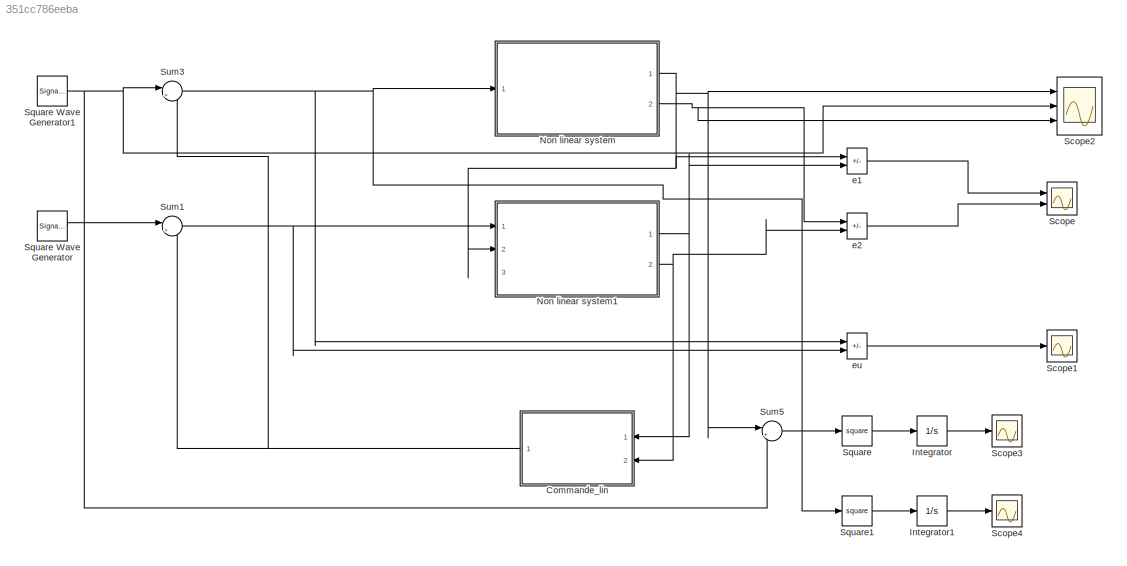
MODEL slx_351cc786eeba
KIND model
CONFIG AbsTol = auto
CONFIG EnableMultiTasking = off
CONFIG FixedStep = auto
CONFIG MaxStep = auto
CONFIG MinStep = auto
CONFIG RelTol = 1e-3
CONFIG SampleTimeConstraint = Unconstrained
CONFIG Solver = VariableStepAuto
CONFIG SolverName = VariableStepAuto
CONFIG StartTime = 0.0
CONFIG StopTime = 100
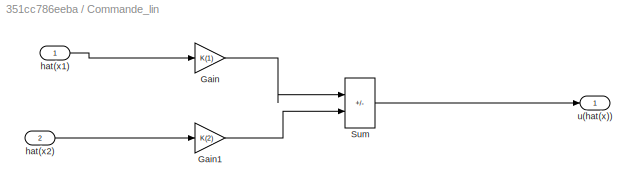
BLOCK [SubSystem] Commande_lin
  NameLocation = top
  Ports = [2, 1]
  RequestExecContextInheritance = off
BLOCK [Gain] Commande_lin/Gain
  Gain = K(1)
BLOCK [Gain] Commande_lin/Gain1
  Gain = K(2)
BLOCK [Sum] Commande_lin/Sum
  IconShape = rectangular
  Inputs = |--
  Ports = [2, 1]
BLOCK [Inport] Commande_lin/hat(x1)
BLOCK [Inport] Commande_lin/hat(x2)
  Port = 2
BLOCK [Outport] Commande_lin/u(hat(x))
BLOCK [Integrator] Integrator
  Ports = [1, 1]
BLOCK [Integrator] Integrator1
  Ports = [1, 1]
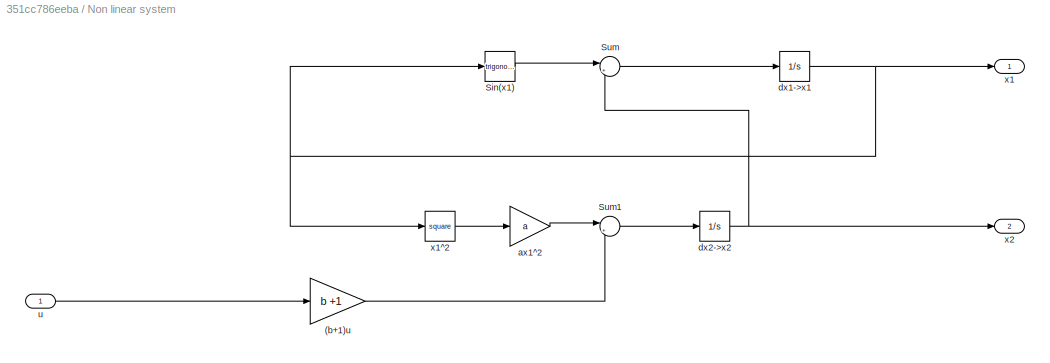
BLOCK [SubSystem] Non linear system
  Ports = [1, 2]
  RequestExecContextInheritance = off
BLOCK [Gain] Non linear system/(b+1)u
  Gain = b +1
BLOCK [Trigonometry] Non linear system/Sin(x1)
  Ports = [1, 1]
BLOCK [Sum] Non linear system/Sum
  Inputs = |++
  Ports = [2, 1]
BLOCK [Sum] Non linear system/Sum1
  Inputs = |++
  Ports = [2, 1]
BLOCK [Gain] Non linear system/ax1^2
  Gain = a
BLOCK [Integrator] Non linear system/dx1->x1
  Ports = [1, 1]
BLOCK [Integrator] Non linear system/dx2->x2
  Ports = [1, 1]
BLOCK [Inport] Non linear system/u
BLOCK [Outport] Non linear system/x1
BLOCK [Math] Non linear system/x1^2
  Operator = square
  Ports = [1, 1]
BLOCK [Outport] Non linear system/x2
  Port = 2
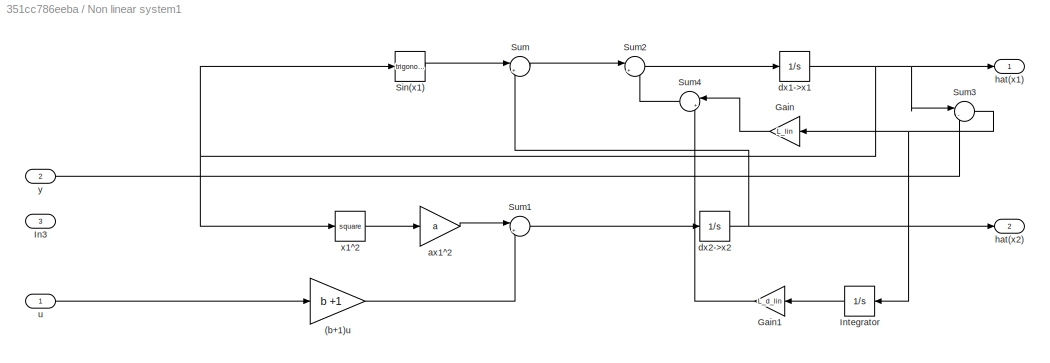
BLOCK [SubSystem] Non linear system1
  PortSchema = {"entries":[{"content":{"sides":[{"content":{"connectorIds":["In1","In2"]},"type":"ConnectorPlacement.EquallySpacedRectSide","uuid":"618d0c69-a2b8-4648-b070-1c0623f9788f"},{"content":{"connectorIds":["In3","Out1","Out2"],"side":"RIGHT"},"type":"ConnectorPlacement.EquallySpacedRectSide","uuid":"79cec027-d132-4f78-855a-d4abd2a9ad58"},{"content":{"connectorIds":[],"side":"TOP"},"type":"ConnectorPlace...<+261ch>
  Ports = [3, 2]
  RequestExecContextInheritance = off
BLOCK [Gain] Non linear system1/(b+1)u
  Gain = b +1
BLOCK [Gain] Non linear system1/Gain
  Gain = L_lin
  NameLocation = top
BLOCK [Gain] Non linear system1/Gain1
  Gain = L_d_lin
  NameLocation = top
BLOCK [Inport] Non linear system1/In3
  Port = 3
BLOCK [Integrator] Non linear system1/Integrator
  NameLocation = top
  Ports = [1, 1]
BLOCK [Trigonometry] Non linear system1/Sin(x1)
  Ports = [1, 1]
BLOCK [Sum] Non linear system1/Sum
  Inputs = |++
  Ports = [2, 1]
BLOCK [Sum] Non linear system1/Sum1
  Inputs = |++
  Ports = [2, 1]
BLOCK [Sum] Non linear system1/Sum2
  Inputs = |++
  Ports = [2, 1]
BLOCK [Sum] Non linear system1/Sum3
  Inputs = |-+
  Ports = [2, 1]
BLOCK [Sum] Non linear system1/Sum4
  Inputs = |++
  NameLocation = top
  Ports = [2, 1]
BLOCK [Gain] Non linear system1/ax1^2
  Gain = a
BLOCK [Integrator] Non linear system1/dx1->x1
  Ports = [1, 1]
BLOCK [Integrator] Non linear system1/dx2->x2
  InitialCondition = 1
  Ports = [1, 1]
BLOCK [Outport] Non linear system1/hat(x1)
BLOCK [Outport] Non linear system1/hat(x2)
  Port = 2
BLOCK [Inport] Non linear system1/u
BLOCK [Math] Non linear system1/x1^2
  Operator = square
  Ports = [1, 1]
BLOCK [Inport] Non linear system1/y
  Port = 2
BLOCK [Scope] Scope
  Floating = off
  NumInputPorts = 2
  Ports = [2]
  ScopeSpecificationString = Simulink.scopes.TimeScopeBlockCfg('CurrentConfiguration', extmgr.ConfigurationSet(extmgr.Configuration('Core','General UI',true),extmgr.Configuration('Core','Source UI',true),extmgr.Configuration('Sources','WiredSimulink',true,'DataLoggingVariableName','ScopeData1'),extmgr.Configuration('Visuals','Time Domain',true,'SerializedDisplays',{struct('MinYLimReal','-3.03671','MaxYLimReal','1.2993','YLabe...<+1461ch>
BLOCK [Scope] Scope1
  Floating = off
  NumInputPorts = 1
  Ports = [1]
  ScopeSpecificationString = Simulink.scopes.TimeScopeBlockCfg('CurrentConfiguration', extmgr.ConfigurationSet(extmgr.Configuration('Core','General UI',true),extmgr.Configuration('Core','Source UI',true),extmgr.Configuration('Sources','WiredSimulink',true,'DataLoggingVariableName','ScopeData1'),extmgr.Configuration('Visuals','Time Domain',true,'SerializedDisplays',{struct('MinYLimReal','-0.0001','MaxYLimReal','0.00003','YLabe...<+1401ch>
BLOCK [Scope] Scope2
  Floating = off
  NumInputPorts = 3
  Ports = [3]
  ScopeSpecificationString = Simulink.scopes.TimeScopeBlockCfg('CurrentConfiguration', extmgr.ConfigurationSet(extmgr.Configuration('Core','General UI',true),extmgr.Configuration('Core','Source UI',true),extmgr.Configuration('Sources','WiredSimulink',true,'DataLoggingVariableName','ScopeData1'),extmgr.Configuration('Visuals','Time Domain',true,'SerializedDisplays',{struct('MinYLimReal','-1.802','MaxYLimReal','1.88745','YLabel...<+1421ch>
BLOCK [Scope] Scope3
  Floating = off
  NumInputPorts = 1
  Ports = [1]
  ScopeSpecificationString = Simulink.scopes.TimeScopeBlockCfg('CurrentConfiguration', extmgr.ConfigurationSet(extmgr.Configuration('Core','General UI',true),extmgr.Configuration('Core','Source UI',true),extmgr.Configuration('Sources','WiredSimulink',true,'DataLoggingVariableName','ScopeData2'),extmgr.Configuration('Visuals','Time Domain',true,'SerializedDisplays',{struct('MinYLimReal','-37.55743','MaxYLimReal','338.01687','Y...<+1379ch>
BLOCK [Scope] Scope4
  Floating = off
  NumInputPorts = 1
  Ports = [1]
  ScopeSpecificationString = Simulink.scopes.TimeScopeBlockCfg('CurrentConfiguration', extmgr.ConfigurationSet(extmgr.Configuration('Core','General UI',true),extmgr.Configuration('Core','Source UI',true),extmgr.Configuration('Sources','WiredSimulink',true,'DataLoggingVariableName','ScopeData3'),extmgr.Configuration('Visuals','Time Domain',true,'SerializedDisplays',{struct('MinYLimReal','-3.06858','MaxYLimReal','27.61722','YLa...<+1374ch>
BLOCK [Math] Square
  Operator = square
  Ports = [1, 1]
BLOCK [SignalGenerator] Square Wave Generator
  Frequency = 0.1
  Ports = [0, 1]
  Units = rad/sec
  WaveForm = square
BLOCK [SignalGenerator] Square Wave Generator1
  Frequency = 0.1
  Ports = [0, 1]
  Units = rad/sec
  WaveForm = square
BLOCK [Math] Square1
  Operator = square
  Ports = [1, 1]
BLOCK [Sum] Sum1
  Inputs = |++
  Ports = [2, 1]
BLOCK [Sum] Sum3
  Inputs = |++
  Ports = [2, 1]
BLOCK [Sum] Sum5
  Inputs = |++
  Ports = [2, 1]
BLOCK [Sum] e1
  IconShape = rectangular
  Inputs = |+-
  Ports = [2, 1]
BLOCK [Sum] e2
  IconShape = rectangular
  Inputs = |+-
  Ports = [2, 1]
BLOCK [Sum] eu
  IconShape = rectangular
  Inputs = |+-
  Ports = [2, 1]
LINE Commande_lin/Gain1:1 -> Commande_lin/Sum:2
LINE Commande_lin/Gain:1 -> Commande_lin/Sum:1
LINE Commande_lin/Sum:1 -> Commande_lin/u(hat(x)):1
LINE Commande_lin/hat(x1):1 -> Commande_lin/Gain:1
LINE Commande_lin/hat(x2):1 -> Commande_lin/Gain1:1
NET Commande_lin:1 -> Sum1:2, Sum3:2
LINE Integrator1:1 -> Scope4:1
LINE Integrator:1 -> Scope3:1
LINE Non linear system/(b+1)u:1 -> Non linear system/Sum1:2
LINE Non linear system/Sin(x1):1 -> Non linear system/Sum:1
LINE Non linear system/Sum1:1 -> Non linear system/dx2->x2:1
LINE Non linear system/Sum:1 -> Non linear system/dx1->x1:1
LINE Non linear system/ax1^2:1 -> Non linear system/Sum1:1
NET Non linear system/dx1->x1:1 -> Non linear system/Sin(x1):1, Non linear system/x1:1, Non linear system/x1^2:1
NET Non linear system/dx2->x2:1 -> Non linear system/Sum:2, Non linear system/x2:1
LINE Non linear system/u:1 -> Non linear system/(b+1)u:1
LINE Non linear system/x1^2:1 -> Non linear system/ax1^2:1
LINE Non linear system1/(b+1)u:1 -> Non linear system1/Sum1:2
LINE Non linear system1/Gain1:1 -> Non linear system1/Sum4:2
LINE Non linear system1/Gain:1 -> Non linear system1/Sum4:1
LINE Non linear system1/Integrator:1 -> Non linear system1/Gain1:1
LINE Non linear system1/Sin(x1):1 -> Non linear system1/Sum:1
LINE Non linear system1/Sum1:1 -> Non linear system1/dx2->x2:1
LINE Non linear system1/Sum2:1 -> Non linear system1/dx1->x1:1
NET Non linear system1/Sum3:1 -> Non linear system1/Gain:1, Non linear system1/Integrator:1
LINE Non linear system1/Sum4:1 -> Non linear system1/Sum2:2
LINE Non linear system1/Sum:1 -> Non linear system1/Sum2:1
LINE Non linear system1/ax1^2:1 -> Non linear system1/Sum1:1
NET Non linear system1/dx1->x1:1 -> Non linear system1/Sin(x1):1, Non linear system1/Sum3:1, Non linear system1/hat(x1):1, Non linear system1/x1^2:1
NET Non linear system1/dx2->x2:1 -> Non linear system1/Sum:2, Non linear system1/hat(x2):1
LINE Non linear system1/u:1 -> Non linear system1/(b+1)u:1
LINE Non linear system1/x1^2:1 -> Non linear system1/ax1^2:1
LINE Non linear system1/y:1 -> Non linear system1/Sum3:2
NET Non linear system1:1 -> Commande_lin:1, e1:2
NET Non linear system1:2 -> Commande_lin:2, e2:2
NET Non linear system:1 -> Non linear system1:2, Scope2:1, Sum5:1, e1:1
NET Non linear system:2 -> Scope2:3, e2:1
NET Square Wave Generator1:1 -> Scope2:2, Sum3:1, Sum5:2
LINE Square Wave Generator:1 -> Sum1:1
LINE Square1:1 -> Integrator1:1
LINE Square:1 -> Integrator:1
NET Sum1:1 -> Non linear system1:1, eu:2
NET Sum3:1 -> Non linear system:1, Square1:1, eu:1
LINE Sum5:1 -> Square:1
LINE e1:1 -> Scope:1
LINE e2:1 -> Scope:2
LINE eu:1 -> Scope1:1
note: NET lines group one-source signal fan-out (src -> all destinations, sorted); 1:1 wires keep LINE
